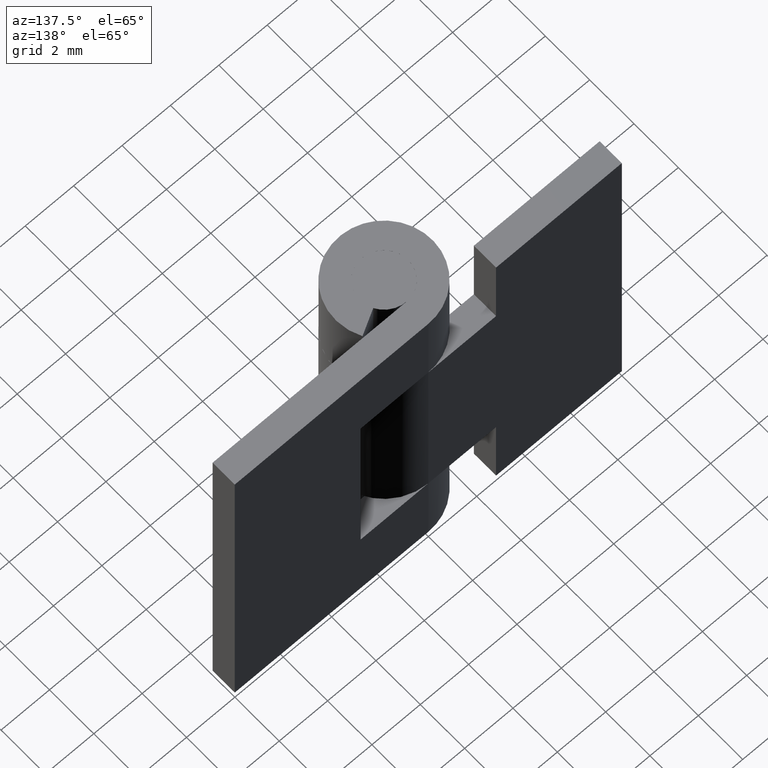
[diagram: clean part render]
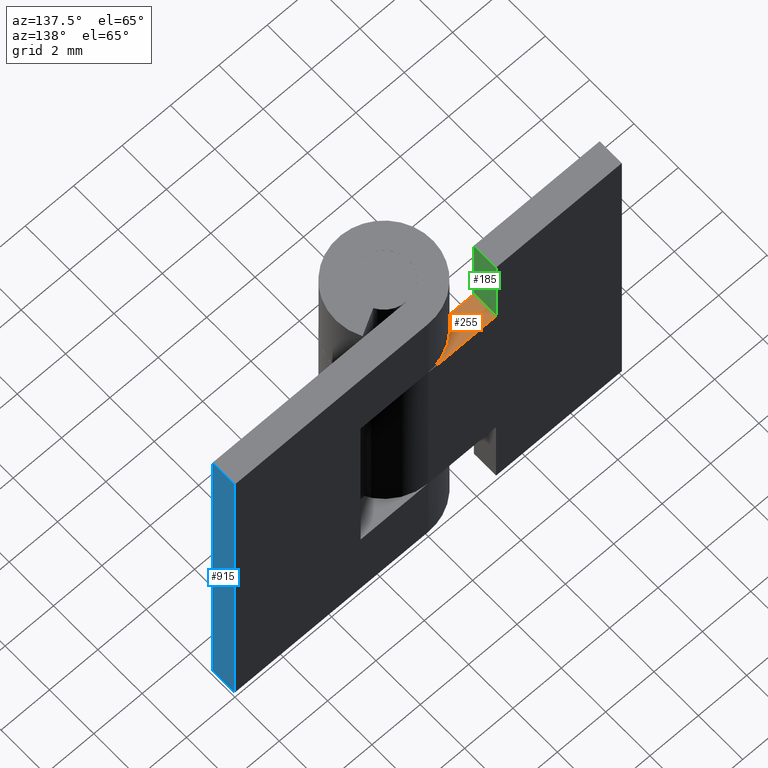
[diagram: same view with three faces highlighted in distinct colors, each labeled with its STEP entity id]
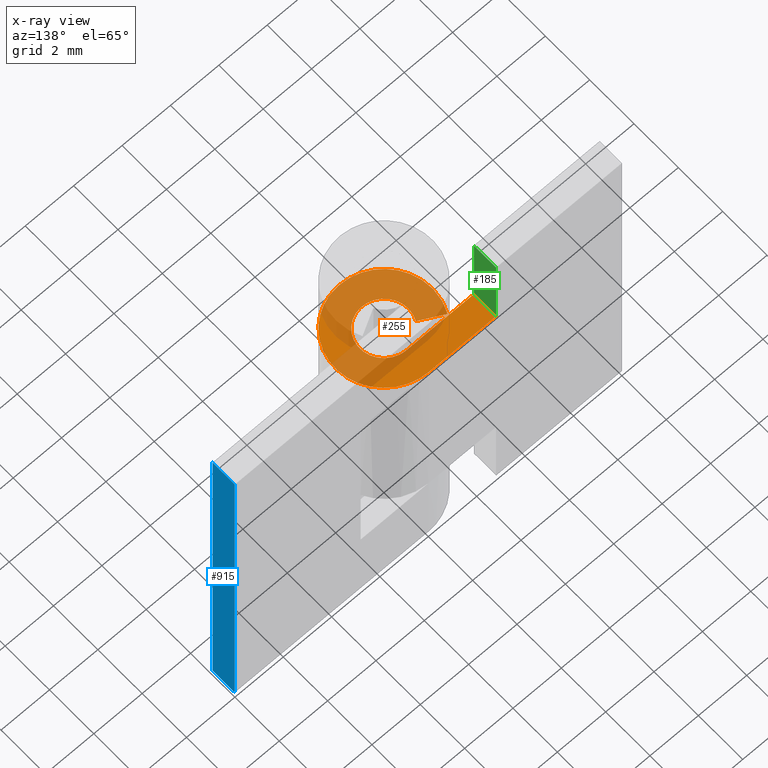
[diagram: x-ray of the same camera — body ghosted, the three highlighted faces saturated]
A machine part, auxiliary view with three faces highlighted in distinct colors.
The next image is the same camera in x-ray (body ghosted, the three faces saturated) — at least one of them is partly hidden behind the body in this view.
Their STEP definitions:

[orange] entity #255 — the highlighted face is a freeform B-spline surface patch.
#155=CARTESIAN_POINT('',(-2.800003000000000,1.0,11.500000000000000));
#156=VERTEX_POINT('',#155);
#157=CARTESIAN_POINT('',(-2.800003000000000,2.0,11.500000000000000));
#158=VERTEX_POINT('',#157);
#159=CARTESIAN_POINT('',(-2.800003000000000,1.0,11.500000000000000));
#160=CARTESIAN_POINT('',(-2.800003000000000,2.0,11.500000000000000));
#161=QUASI_UNIFORM_CURVE('',1,(#159,#160),.UNSPECIFIED.,.F.,.U.);
#162=EDGE_CURVE('',#156,#158,#161,.T.);
#186=CARTESIAN_POINT('',(2.239682677261474,-2.199489963901460,11.500000000000000));
#187=CARTESIAN_POINT('',(-3.039759584076307,-2.199489963901461,11.500000000000000));
#188=CARTESIAN_POINT('',(2.239682677261474,2.199785350334563,11.500000000000000));
#189=CARTESIAN_POINT('',(-3.039759584076307,2.199785350334563,11.500000000000000));
#190=B_SPLINE_SURFACE_WITH_KNOTS('',1,1,((#186,#188),(#187,#189)),.UNSPECIFIED.,.F.,.F.,.U.,(2,2),(2,2),(0.0,5.279442261337780),(0.0,4.399275314236023),.UNSPECIFIED.);
#191=CARTESIAN_POINT('',(-0.879985795339901,0.475000000000000,11.500000000000000));
#192=VERTEX_POINT('',#191);
#193=CARTESIAN_POINT('',(-2.220446E-016,1.0,11.500000000000000));
#194=VERTEX_POINT('',#193);
#195=CARTESIAN_POINT('',(-0.879985795339902,0.475000000000001,11.500000000000000));
#196=CARTESIAN_POINT('',(-1.241772259107792,-0.195246208551571,11.500000000000000));
#197=CARTESIAN_POINT('',(-0.691759022314385,-0.722128420051895,11.500000000000000));
#198=CARTESIAN_POINT('',(-0.141745785520978,-1.249010631552219,11.500000000000000));
#199=CARTESIAN_POINT('',(0.512347538297979,-0.858778201865884,11.500000000000000));
#200=CARTESIAN_POINT('',(1.166440862116937,-0.468545772179549,11.500000000000000));
#201=CARTESIAN_POINT('',(0.964048287656247,0.265727113910226,11.500000000000000));
#202=CARTESIAN_POINT('',(0.761655713195557,1.0,11.500000000000000));
#203=CARTESIAN_POINT('',(0.0,1.0,11.500000000000000));
#211=(BOUNDED_CURVE()B_SPLINE_CURVE(2,(#195,#196,#197,#198,#199,#200,#201,#202,#203),.UNSPECIFIED.,.F.,.U.)B_SPLINE_CURVE_WITH_KNOTS((3,2,2,2,3),(0.0,0.250000000000000,0.500000000000000,0.750000000000000,1.0),.UNSPECIFIED.)CURVE()GEOMETRIC_REPRESENTATION_ITEM()RATIONAL_B_SPLINE_CURVE((1.0,0.795527219493534,1.0,0.795527219493534,1.0,0.795527219493534,1.0,0.795527219493534,1.0))REPRESENTATION_ITEM(''));
#212=EDGE_CURVE('',#192,#194,#211,.T.);
#213=ORIENTED_EDGE('',*,*,#212,.F.);
#214=CARTESIAN_POINT('',(-1.759971590679805,0.950000000000000,11.500000000000000));
#215=VERTEX_POINT('',#214);
#216=CARTESIAN_POINT('',(-1.759971590679805,0.950000000000000,11.500000000000000));
#217=CARTESIAN_POINT('',(-0.879985795339901,0.475000000000000,11.500000000000000));
#218=QUASI_UNIFORM_CURVE('',1,(#216,#217),.UNSPECIFIED.,.F.,.U.);
#219=EDGE_CURVE('',#215,#192,#218,.T.);
#220=ORIENTED_EDGE('',*,*,#219,.F.);
#221=CARTESIAN_POINT('',(0.0,2.0,11.500000000000000));
#222=VERTEX_POINT('',#221);
#223=CARTESIAN_POINT('',(-1.759971590679804,0.950000000000000,11.500000000000000));
#224=CARTESIAN_POINT('',(-2.483544518215584,-0.390492417103144,11.500000000000002));
#225=CARTESIAN_POINT('',(-1.383518044628769,-1.444256840103792,11.500000000000000));
#226=CARTESIAN_POINT('',(-0.283491571041955,-2.498021263104437,11.500000000000002));
#227=CARTESIAN_POINT('',(1.024695076595959,-1.717556403731767,11.500000000000000));
#228=CARTESIAN_POINT('',(2.332881724233873,-0.937091544359097,11.500000000000002));
#229=CARTESIAN_POINT('',(1.928096575312494,0.531454227820451,11.500000000000000));
#230=CARTESIAN_POINT('',(1.523311426391115,2.000000000000000,11.500000000000002));
#231=CARTESIAN_POINT('',(0.0,2.0,11.500000000000000));
#239=(BOUNDED_CURVE()B_SPLINE_CURVE(2,(#223,#224,#225,#226,#227,#228,#229,#230,#231),.UNSPECIFIED.,.F.,.U.)B_SPLINE_CURVE_WITH_KNOTS((3,2,2,2,3),(0.0,0.250000000000000,0.500000000000000,0.750000000000000,1.0),.UNSPECIFIED.)CURVE()GEOMETRIC_REPRESENTATION_ITEM()RATIONAL_B_SPLINE_CURVE((1.0,0.795527219493534,1.0,0.795527219493534,1.0,0.795527219493534,1.0,0.795527219493534,1.0))REPRESENTATION_ITEM(''));
#240=EDGE_CURVE('',#215,#222,#239,.T.);
#241=ORIENTED_EDGE('',*,*,#240,.T.);
#242=CARTESIAN_POINT('',(0.0,2.0,11.500000000000000));
#243=CARTESIAN_POINT('',(-2.800003000000000,2.0,11.500000000000000));
#244=QUASI_UNIFORM_CURVE('',1,(#242,#243),.UNSPECIFIED.,.F.,.U.);
#245=EDGE_CURVE('',#222,#158,#244,.T.);
#246=ORIENTED_EDGE('',*,*,#245,.T.);
#247=ORIENTED_EDGE('',*,*,#162,.F.);
#248=CARTESIAN_POINT('',(-2.220446E-016,1.0,11.500000000000000));
#249=CARTESIAN_POINT('',(-2.800003000000000,1.0,11.500000000000000));
#250=QUASI_UNIFORM_CURVE('',1,(#248,#249),.UNSPECIFIED.,.F.,.U.);
#251=EDGE_CURVE('',#194,#156,#250,.T.);
#252=ORIENTED_EDGE('',*,*,#251,.F.);
#253=EDGE_LOOP('',(#213,#220,#241,#246,#247,#252));
#254=FACE_OUTER_BOUND('',#253,.T.);
#255=ADVANCED_FACE('',(#254),#190,.F.);

[blue] entity #915 — the highlighted face is a freeform B-spline surface patch.
#695=CARTESIAN_POINT('',(8.0,2.0,0.0));
#696=VERTEX_POINT('',#695);
#702=CARTESIAN_POINT('',(8.0,1.0,0.0));
#703=VERTEX_POINT('',#702);
#704=CARTESIAN_POINT('',(8.0,2.0,0.0));
#705=CARTESIAN_POINT('',(8.0,1.0,0.0));
#706=QUASI_UNIFORM_CURVE('',1,(#704,#705),.UNSPECIFIED.,.F.,.U.);
#707=EDGE_CURVE('',#696,#703,#706,.T.);
#801=CARTESIAN_POINT('',(8.0,1.0,15.0));
#802=VERTEX_POINT('',#801);
#808=CARTESIAN_POINT('',(8.0,2.0,15.0));
#809=VERTEX_POINT('',#808);
#810=CARTESIAN_POINT('',(8.0,2.0,15.0));
#811=CARTESIAN_POINT('',(8.0,1.0,15.0));
#812=QUASI_UNIFORM_CURVE('',1,(#810,#811),.UNSPECIFIED.,.F.,.U.);
#813=EDGE_CURVE('',#809,#802,#812,.T.);
#888=CARTESIAN_POINT('',(8.0,1.0,15.0));
#889=CARTESIAN_POINT('',(8.0,1.0,0.0));
#890=QUASI_UNIFORM_CURVE('',1,(#888,#889),.UNSPECIFIED.,.F.,.U.);
#891=EDGE_CURVE('',#802,#703,#890,.T.);
#900=CARTESIAN_POINT('',(8.0,0.950050001938194,15.749249970927091));
#901=CARTESIAN_POINT('',(8.0,0.950050001938194,-0.749250373258442));
#902=CARTESIAN_POINT('',(8.0,2.049950024883896,15.749249970927091));
#903=CARTESIAN_POINT('',(8.0,2.049950024883896,-0.749250373258442));
#904=B_SPLINE_SURFACE_WITH_KNOTS('',1,1,((#900,#902),(#901,#903)),.UNSPECIFIED.,.F.,.F.,.U.,(2,2),(2,2),(0.0,16.498500344185530),(0.041708334948495,0.958291687403247),.UNSPECIFIED.);
#905=ORIENTED_EDGE('',*,*,#707,.F.);
#906=CARTESIAN_POINT('',(8.0,2.0,15.0));
#907=CARTESIAN_POINT('',(8.0,2.0,0.0));
#908=QUASI_UNIFORM_CURVE('',1,(#906,#907),.UNSPECIFIED.,.F.,.U.);
#909=EDGE_CURVE('',#809,#696,#908,.T.);
#910=ORIENTED_EDGE('',*,*,#909,.F.);
#911=ORIENTED_EDGE('',*,*,#813,.T.);
#912=ORIENTED_EDGE('',*,*,#891,.T.);
#913=EDGE_LOOP('',(#905,#910,#911,#912));
#914=FACE_OUTER_BOUND('',#913,.T.);
#915=ADVANCED_FACE('',(#914),#904,.T.);

[green] entity #185 — the highlighted face is a freeform B-spline surface patch.
#150=CARTESIAN_POINT('',(-2.800003000000000,0.950050001938194,11.325175006783679));
#151=CARTESIAN_POINT('',(-2.800003000000000,0.950050001938194,15.174825087093639));
#152=CARTESIAN_POINT('',(-2.800003000000000,2.049950024883896,11.325175006783679));
#153=CARTESIAN_POINT('',(-2.800003000000000,2.049950024883896,15.174825087093639));
#154=B_SPLINE_SURFACE_WITH_KNOTS('',1,1,((#150,#152),(#151,#153)),.UNSPECIFIED.,.F.,.F.,.U.,(2,2),(2,2),(0.0,3.849650080309958),(0.041708334948495,0.958291687403247),.UNSPECIFIED.);
#155=CARTESIAN_POINT('',(-2.800003000000000,1.0,11.500000000000000));
#156=VERTEX_POINT('',#155);
#157=CARTESIAN_POINT('',(-2.800003000000000,2.0,11.500000000000000));
#158=VERTEX_POINT('',#157);
#159=CARTESIAN_POINT('',(-2.800003000000000,1.0,11.500000000000000));
#160=CARTESIAN_POINT('',(-2.800003000000000,2.0,11.500000000000000));
#161=QUASI_UNIFORM_CURVE('',1,(#159,#160),.UNSPECIFIED.,.F.,.U.);
#162=EDGE_CURVE('',#156,#158,#161,.T.);
#163=ORIENTED_EDGE('',*,*,#162,.T.);
#164=CARTESIAN_POINT('',(-2.800003000000000,2.0,15.0));
#165=VERTEX_POINT('',#164);
#166=CARTESIAN_POINT('',(-2.800003000000000,2.0,11.500000000000000));
#167=CARTESIAN_POINT('',(-2.800003000000000,2.0,15.0));
#168=QUASI_UNIFORM_CURVE('',1,(#166,#167),.UNSPECIFIED.,.F.,.U.);
#169=EDGE_CURVE('',#158,#165,#168,.T.);
#170=ORIENTED_EDGE('',*,*,#169,.T.);
#171=CARTESIAN_POINT('',(-2.800003000000000,1.0,15.0));
#172=VERTEX_POINT('',#171);
#173=CARTESIAN_POINT('',(-2.800003000000000,1.0,15.0));
#174=CARTESIAN_POINT('',(-2.800003000000000,2.0,15.0));
#175=QUASI_UNIFORM_CURVE('',1,(#173,#174),.UNSPECIFIED.,.F.,.U.);
#176=EDGE_CURVE('',#172,#165,#175,.T.);
#177=ORIENTED_EDGE('',*,*,#176,.F.);
#178=CARTESIAN_POINT('',(-2.800003000000000,1.0,11.500000000000000));
#179=CARTESIAN_POINT('',(-2.800003000000000,1.0,15.0));
#180=QUASI_UNIFORM_CURVE('',1,(#178,#179),.UNSPECIFIED.,.F.,.U.);
#181=EDGE_CURVE('',#156,#172,#180,.T.);
#182=ORIENTED_EDGE('',*,*,#181,.F.);
#183=EDGE_LOOP('',(#163,#170,#177,#182));
#184=FACE_OUTER_BOUND('',#183,.T.);
#185=ADVANCED_FACE('',(#184),#154,.F.);